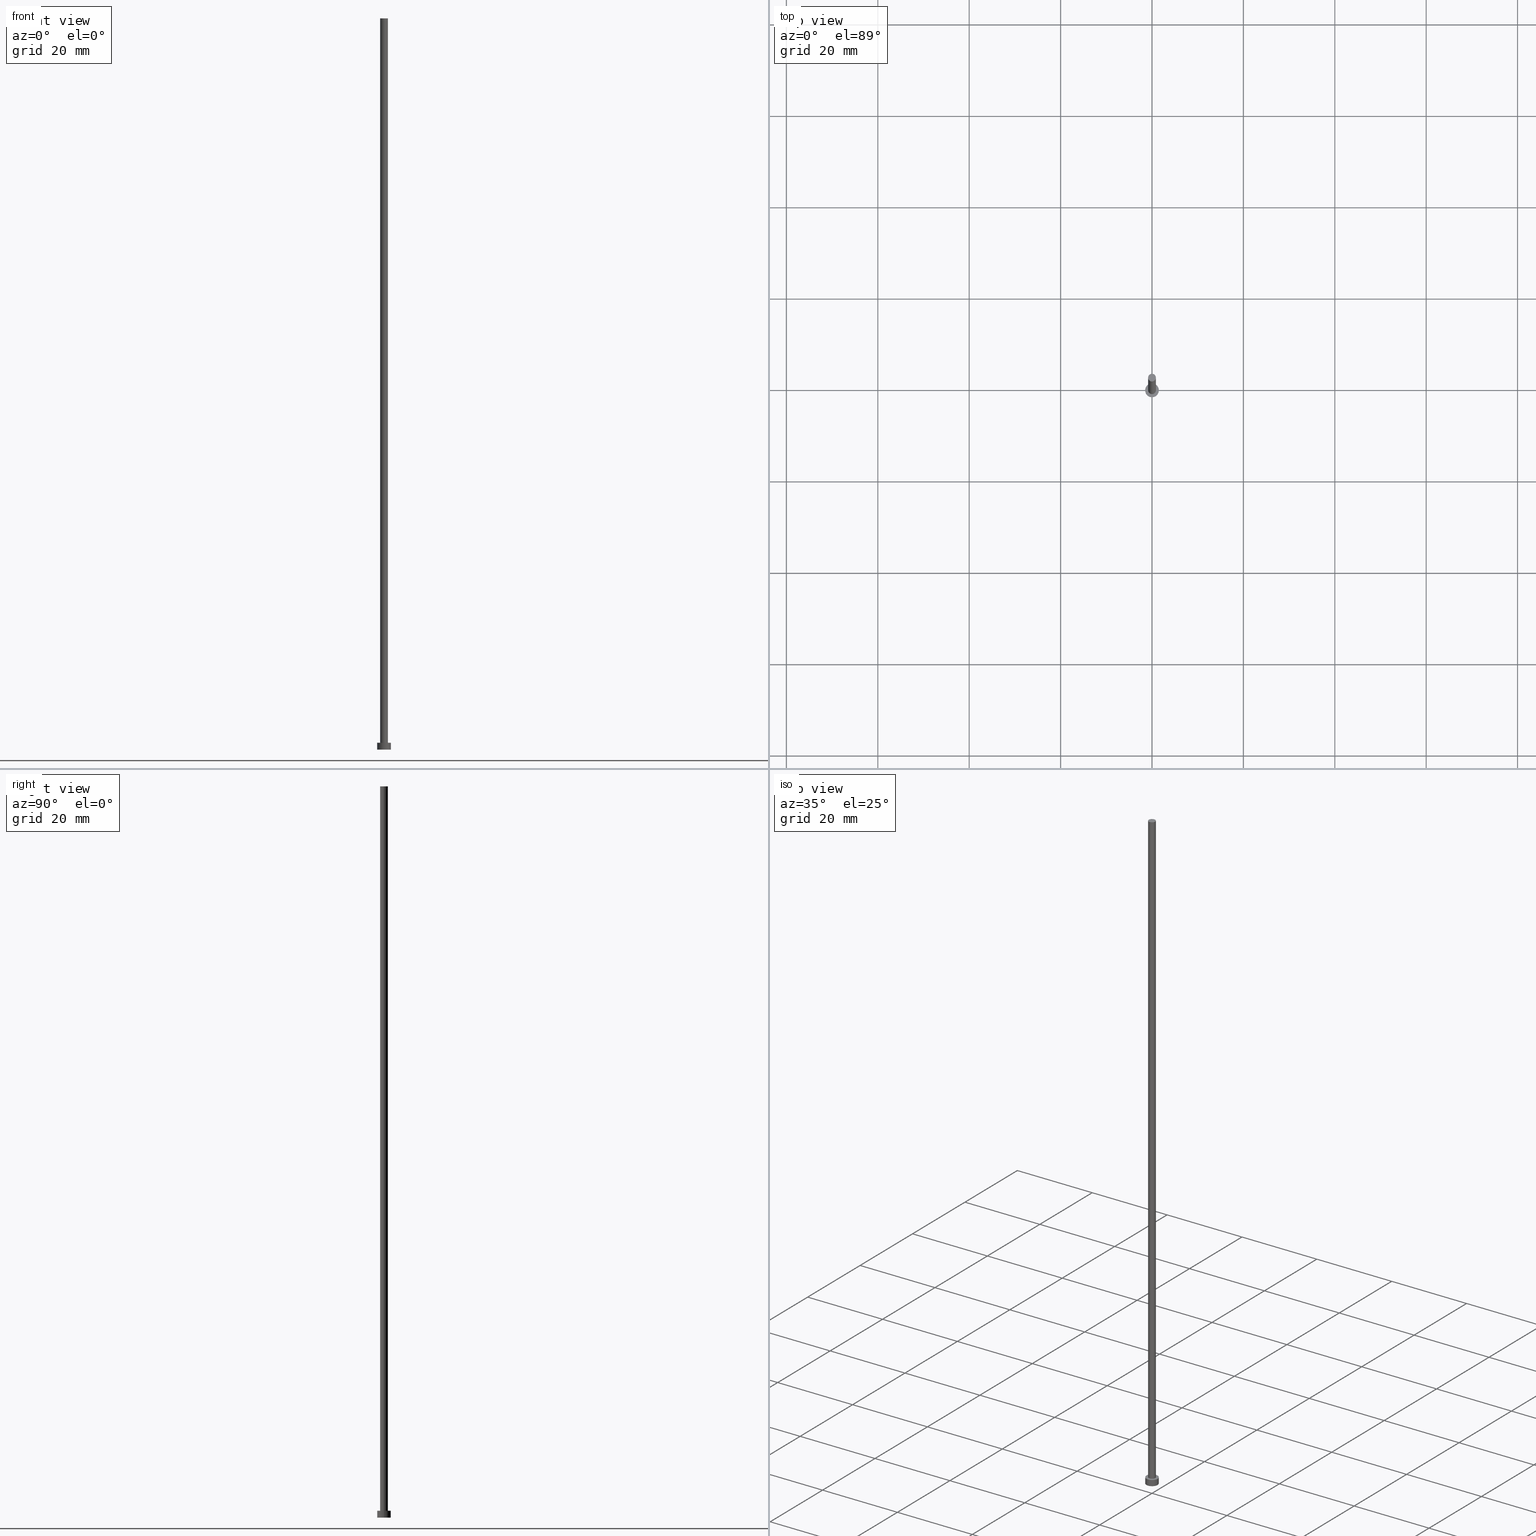
[diagram: canonical four-view strip — front | top / right | iso, engineering-drawing reading convention]
A machine part, canonical four-view strip (front | top / right | iso — engineering-drawing reading convention). The complete STEP part file that produces these views, byte-faithful:
ISO-10303-21;
HEADER;
FILE_DESCRIPTION (( 'STEP AP203' ),
    '1' );
FILE_NAME ('795b.STEP',
    '2023-02-13T14:57:43',
    ( '' ),
    ( '' ),
    'SwSTEP 2.0',
    'SolidWorks 2019',
    '' );
FILE_SCHEMA (( 'CONFIG_CONTROL_DESIGN' ));
ENDSEC;

DATA;
#1 = ORIENTED_EDGE ( 'NONE', *, *, #146, .F. ) ;
#2 = CC_DESIGN_APPROVAL ( #182, ( #253 ) ) ;
#3 = ORIENTED_EDGE ( 'NONE', *, *, #162, .F. ) ;
#4 = CARTESIAN_POINT ( 'NONE',  ( 0.8499999999999999778, 1.040949779275250140E-16, 160.0000000000000000 ) ) ;
#5 = LINE ( 'NONE', #79, #232 ) ;
#6 = CARTESIAN_POINT ( 'NONE',  ( 0.000000000000000000, 0.000000000000000000, 0.000000000000000000 ) ) ;
#7 = DIRECTION ( 'NONE',  ( 0.000000000000000000, 0.000000000000000000, 1.000000000000000000 ) ) ;
#8 = LOCAL_TIME ( 15, 57, 43.00000000000000000, #104 ) ;
#9 = DESIGN_CONTEXT ( 'detailed design', #115, 'design' ) ;
#10 = SECURITY_CLASSIFICATION_LEVEL ( 'unclassified' ) ;
#11 = DIRECTION ( 'NONE',  ( 1.000000000000000000, 0.000000000000000000, 0.000000000000000000 ) ) ;
#12 = PERSON_AND_ORGANIZATION ( #92, #57 ) ;
#13 = EDGE_CURVE ( 'NONE', #137, #52, #87, .T. ) ;
#14 = COORDINATED_UNIVERSAL_TIME_OFFSET ( 1, 0, .AHEAD. ) ;
#15 = VERTEX_POINT ( 'NONE', #95 ) ;
#16 = ORIENTED_EDGE ( 'NONE', *, *, #128, .F. ) ;
#17 = ORIENTED_EDGE ( 'NONE', *, *, #53, .F. ) ;
#18 = ORIENTED_EDGE ( 'NONE', *, *, #160, .F. ) ;
#19 = ORIENTED_EDGE ( 'NONE', *, *, #128, .T. ) ;
#20 = DIRECTION ( 'NONE',  ( 0.000000000000000000, 0.000000000000000000, 1.000000000000000000 ) ) ;
#21 = ADVANCED_FACE ( 'NONE', ( #75 ), #139, .T. ) ;
#22 = DIRECTION ( 'NONE',  ( 1.000000000000000000, 0.000000000000000000, -0.000000000000000000 ) ) ;
#23 = ADVANCED_BREP_SHAPE_REPRESENTATION ( '795b', ( #59, #196 ), #187 ) ;
#24 = DIRECTION ( 'NONE',  ( -1.000000000000000000, 0.000000000000000000, 0.000000000000000000 ) ) ;
#25 = FACE_OUTER_BOUND ( 'NONE', #216, .T. ) ;
#26 = AXIS2_PLACEMENT_3D ( 'NONE', #249, #251, #45 ) ;
#27 = APPROVAL_DATE_TIME ( #225, #182 ) ;
#28 = APPLICATION_PROTOCOL_DEFINITION ( 'international standard', 'config_control_design', 1994, #168 ) ;
#29 = APPROVAL_ROLE ( '' ) ;
#30 = CIRCLE ( 'NONE', #135, 1.500000000000000222 ) ;
#31 = VERTEX_POINT ( 'NONE', #118 ) ;
#32 = APPROVAL_PERSON_ORGANIZATION ( #131, #89, #29 ) ;
#33 = ORIENTED_EDGE ( 'NONE', *, *, #146, .T. ) ;
#34 = EDGE_LOOP ( 'NONE', ( #159, #134 ) ) ;
#35 = ORIENTED_EDGE ( 'NONE', *, *, #227, .F. ) ;
#36 = AXIS2_PLACEMENT_3D ( 'NONE', #183, #7, #81 ) ;
#37 = EDGE_CURVE ( 'NONE', #237, #31, #202, .T. ) ;
#38 = DIRECTION ( 'NONE',  ( -0.000000000000000000, -0.000000000000000000, -1.000000000000000000 ) ) ;
#39 = DIRECTION ( 'NONE',  ( 0.000000000000000000, 0.000000000000000000, 1.000000000000000000 ) ) ;
#40 = CARTESIAN_POINT ( 'NONE',  ( 0.000000000000000000, 0.000000000000000000, 0.000000000000000000 ) ) ;
#41 = CYLINDRICAL_SURFACE ( 'NONE', #213, 1.500000000000000222 ) ;
#42 = LOCAL_TIME ( 15, 57, 43.00000000000000000, #14 ) ;
#43 = UNCERTAINTY_MEASURE_WITH_UNIT (LENGTH_MEASURE( 1.000000000000000082E-05 ), #155, 'distance_accuracy_value', 'NONE');
#44 = DATE_AND_TIME ( #125, #8 ) ;
#45 = DIRECTION ( 'NONE',  ( 1.000000000000000000, 0.000000000000000000, 0.000000000000000000 ) ) ;
#46 = VECTOR ( 'NONE', #97, 1000.000000000000000 ) ;
#47 = DATE_AND_TIME ( #71, #42 ) ;
#48 = AXIS2_PLACEMENT_3D ( 'NONE', #63, #231, #67 ) ;
#49 = ORIENTED_EDGE ( 'NONE', *, *, #73, .F. ) ;
#50 = AXIS2_PLACEMENT_3D ( 'NONE', #158, #212, #116 ) ;
#51 = ORIENTED_EDGE ( 'NONE', *, *, #243, .F. ) ;
#52 = VERTEX_POINT ( 'NONE', #217 ) ;
#53 = EDGE_CURVE ( 'NONE', #90, #255, #60, .T. ) ;
#54 = ORIENTED_EDGE ( 'NONE', *, *, #162, .T. ) ;
#55 = DIRECTION ( 'NONE',  ( -0.000000000000000000, -0.000000000000000000, -1.000000000000000000 ) ) ;
#56 = LOCAL_TIME ( 15, 57, 43.00000000000000000, #88 ) ;
#57 = ORGANIZATION ( 'NEUR�EN�', 'NEUR�EN�', '' ) ;
#58 = PLANE ( 'NONE',  #107 ) ;
#59 = MANIFOLD_SOLID_BREP ( 'P�idat vysunut�m3', #220 ) ;
#60 = CIRCLE ( 'NONE', #176, 0.8499999999999999778 ) ;
#61 = PERSON_AND_ORGANIZATION ( #92, #57 ) ;
#62 = COORDINATED_UNIVERSAL_TIME_OFFSET ( 1, 0, .AHEAD. ) ;
#63 = CARTESIAN_POINT ( 'NONE',  ( 0.000000000000000000, 0.000000000000000000, 1.500000000000000000 ) ) ;
#64 = PERSON_AND_ORGANIZATION_ROLE ( 'creator' ) ;
#65 = CIRCLE ( 'NONE', #110, 1.500000000000000222 ) ;
#66 = CARTESIAN_POINT ( 'NONE',  ( 0.8499999999999999778, 1.040949779275250140E-16, 1.500000000000000000 ) ) ;
#67 = DIRECTION ( 'NONE',  ( -1.000000000000000000, 0.000000000000000000, 0.000000000000000000 ) ) ;
#68 = DATE_AND_TIME ( #233, #56 ) ;
#69 = DIRECTION ( 'NONE',  ( 0.000000000000000000, 0.000000000000000000, 1.000000000000000000 ) ) ;
#70 = APPROVAL_STATUS ( 'not_yet_approved' ) ;
#71 = CALENDAR_DATE ( 2023, 13, 2 ) ;
#72 = EDGE_LOOP ( 'NONE', ( #35, #114, #94, #1 ) ) ;
#73 = EDGE_CURVE ( 'NONE', #31, #237, #65, .T. ) ;
#74 = EDGE_LOOP ( 'NONE', ( #17, #214 ) ) ;
#75 = FACE_OUTER_BOUND ( 'NONE', #254, .T. ) ;
#76 = VERTEX_POINT ( 'NONE', #4 ) ;
#77 = CYLINDRICAL_SURFACE ( 'NONE', #247, 0.8499999999999999778 ) ;
#78 = CC_DESIGN_DATE_AND_TIME_ASSIGNMENT ( #68, #211, ( #230 ) ) ;
#79 = CARTESIAN_POINT ( 'NONE',  ( -1.500000000000000222, 0.000000000000000000, 1.500000000000000000 ) ) ;
#80 = CARTESIAN_POINT ( 'NONE',  ( -0.8499999999999999778, 0.000000000000000000, 160.0000000000000000 ) ) ;
#81 = DIRECTION ( 'NONE',  ( 1.000000000000000000, 0.000000000000000000, -0.000000000000000000 ) ) ;
#82 = DATE_AND_TIME ( #208, #83 ) ;
#83 = LOCAL_TIME ( 15, 57, 43.00000000000000000, #127 ) ;
#84 = APPROVAL_DATE_TIME ( #82, #154 ) ;
#85 =( NAMED_UNIT ( * ) PLANE_ANGLE_UNIT ( ) SI_UNIT ( $, .RADIAN. ) );
#86 = CC_DESIGN_PERSON_AND_ORGANIZATION_ASSIGNMENT ( #12, #172, ( #222 ) ) ;
#87 = CIRCLE ( 'NONE', #50, 1.500000000000000222 ) ;
#88 = COORDINATED_UNIVERSAL_TIME_OFFSET ( 1, 0, .AHEAD. ) ;
#89 = APPROVAL ( #210, 'NEUR�EN�' ) ;
#90 = VERTEX_POINT ( 'NONE', #218 ) ;
#91 = PERSON_AND_ORGANIZATION_ROLE ( 'creator' ) ;
#92 = PERSON ( 'NEUR�EN�', 'NEUR�EN�', 'NEUR�EN�', ('NEUR�EN�'), ('NEUR�EN�'), ('NEUR�EN�') ) ;
#93 = DIRECTION ( 'NONE',  ( -1.000000000000000000, 0.000000000000000000, 0.000000000000000000 ) ) ;
#94 = ORIENTED_EDGE ( 'NONE', *, *, #252, .T. ) ;
#95 = CARTESIAN_POINT ( 'NONE',  ( -0.8499999999999999778, 0.000000000000000000, 160.0000000000000000 ) ) ;
#96 = PRODUCT_RELATED_PRODUCT_CATEGORY ( 'detail', '', ( #222 ) ) ;
#97 = DIRECTION ( 'NONE',  ( -0.000000000000000000, -0.000000000000000000, -1.000000000000000000 ) ) ;
#98 = LINE ( 'NONE', #80, #121 ) ;
#99 = FACE_OUTER_BOUND ( 'NONE', #174, .T. ) ;
#100 = VECTOR ( 'NONE', #55, 1000.000000000000000 ) ;
#101 = DIRECTION ( 'NONE',  ( 0.000000000000000000, 0.000000000000000000, 1.000000000000000000 ) ) ;
#102 = LOCAL_TIME ( 15, 57, 43.00000000000000000, #62 ) ;
#103 = PLANE ( 'NONE',  #157 ) ;
#104 = COORDINATED_UNIVERSAL_TIME_OFFSET ( 1, 0, .AHEAD. ) ;
#105 = CIRCLE ( 'NONE', #250, 0.8499999999999999778 ) ;
#106 = DIRECTION ( 'NONE',  ( -1.000000000000000000, 0.000000000000000000, 0.000000000000000000 ) ) ;
#107 = AXIS2_PLACEMENT_3D ( 'NONE', #203, #224, #126 ) ;
#108 = DIRECTION ( 'NONE',  ( 1.000000000000000000, 0.000000000000000000, 0.000000000000000000 ) ) ;
#109 = PERSON_AND_ORGANIZATION ( #92, #57 ) ;
#110 = AXIS2_PLACEMENT_3D ( 'NONE', #40, #20, #242 ) ;
#111 = ORIENTED_EDGE ( 'NONE', *, *, #37, .T. ) ;
#112 = AXIS2_PLACEMENT_3D ( 'NONE', #150, #170, #11 ) ;
#113 = CC_DESIGN_PERSON_AND_ORGANIZATION_ASSIGNMENT ( #171, #64, ( #253 ) ) ;
#114 = ORIENTED_EDGE ( 'NONE', *, *, #160, .T. ) ;
#115 = APPLICATION_CONTEXT ( 'configuration controlled 3d designs of mechanical parts and assemblies' ) ;
#116 = DIRECTION ( 'NONE',  ( 1.000000000000000000, 0.000000000000000000, 0.000000000000000000 ) ) ;
#117 = CARTESIAN_POINT ( 'NONE',  ( 0.000000000000000000, 0.000000000000000000, 160.0000000000000000 ) ) ;
#118 = CARTESIAN_POINT ( 'NONE',  ( 1.500000000000000222, 1.836970198721030181E-16, 0.000000000000000000 ) ) ;
#119 = DIRECTION ( 'NONE',  ( 1.000000000000000000, 0.000000000000000000, 0.000000000000000000 ) ) ;
#120 = LINE ( 'NONE', #205, #46 ) ;
#121 = VECTOR ( 'NONE', #201, 1000.000000000000000 ) ;
#122 = LINE ( 'NONE', #240, #100 ) ;
#123 = ADVANCED_FACE ( 'NONE', ( #144 ), #77, .T. ) ;
#124 = AXIS2_PLACEMENT_3D ( 'NONE', #117, #194, #93 ) ;
#125 = CALENDAR_DATE ( 2023, 13, 2 ) ;
#126 = DIRECTION ( 'NONE',  ( 1.000000000000000000, 0.000000000000000000, -0.000000000000000000 ) ) ;
#127 = COORDINATED_UNIVERSAL_TIME_OFFSET ( 1, 0, .AHEAD. ) ;
#128 = EDGE_CURVE ( 'NONE', #137, #31, #122, .T. ) ;
#129 = APPROVAL_PERSON_ORGANIZATION ( #173, #182, #167 ) ;
#130 = CARTESIAN_POINT ( 'NONE',  ( -1.500000000000000222, 0.000000000000000000, 0.000000000000000000 ) ) ;
#131 = PERSON_AND_ORGANIZATION ( #92, #57 ) ;
#132 = FACE_OUTER_BOUND ( 'NONE', #195, .T. ) ;
#133 = EDGE_CURVE ( 'NONE', #52, #137, #30, .T. ) ;
#134 = ORIENTED_EDGE ( 'NONE', *, *, #13, .T. ) ;
#135 = AXIS2_PLACEMENT_3D ( 'NONE', #143, #39, #119 ) ;
#136 = AXIS2_PLACEMENT_3D ( 'NONE', #6, #101, #141 ) ;
#137 = VERTEX_POINT ( 'NONE', #198 ) ;
#138 = ORIENTED_EDGE ( 'NONE', *, *, #37, .F. ) ;
#139 = CYLINDRICAL_SURFACE ( 'NONE', #124, 0.8499999999999999778 ) ;
#140 = CIRCLE ( 'NONE', #26, 0.8499999999999999778 ) ;
#141 = DIRECTION ( 'NONE',  ( 1.000000000000000000, 0.000000000000000000, 0.000000000000000000 ) ) ;
#142 = CC_DESIGN_APPROVAL ( #154, ( #206 ) ) ;
#143 = CARTESIAN_POINT ( 'NONE',  ( 0.000000000000000000, 0.000000000000000000, 1.500000000000000000 ) ) ;
#144 = FACE_OUTER_BOUND ( 'NONE', #72, .T. ) ;
#145 = PRODUCT_DEFINITION_SHAPE ( 'NONE', 'NONE',  #230 ) ;
#146 = EDGE_CURVE ( 'NONE', #15, #90, #98, .T. ) ;
#147 = APPROVAL_STATUS ( 'not_yet_approved' ) ;
#148 = DATE_TIME_ROLE ( 'classification_date' ) ;
#149 = CC_DESIGN_PERSON_AND_ORGANIZATION_ASSIGNMENT ( #109, #190, ( #206 ) ) ;
#150 = CARTESIAN_POINT ( 'NONE',  ( 0.000000000000000000, 0.000000000000000000, 1.500000000000000000 ) ) ;
#151 =( NAMED_UNIT ( * ) SI_UNIT ( $, .STERADIAN. ) SOLID_ANGLE_UNIT ( ) );
#152 = DIRECTION ( 'NONE',  ( 0.000000000000000000, 0.000000000000000000, 1.000000000000000000 ) ) ;
#153 = APPROVAL_DATE_TIME ( #47, #89 ) ;
#154 = APPROVAL ( #147, 'NEUR�EN�' ) ;
#155 =( LENGTH_UNIT ( ) NAMED_UNIT ( * ) SI_UNIT ( .MILLI., .METRE. ) );
#156 = ADVANCED_FACE ( 'NONE', ( #219, #163 ), #58, .T. ) ;
#157 = AXIS2_PLACEMENT_3D ( 'NONE', #184, #241, #22 ) ;
#158 = CARTESIAN_POINT ( 'NONE',  ( 0.000000000000000000, 0.000000000000000000, 1.500000000000000000 ) ) ;
#159 = ORIENTED_EDGE ( 'NONE', *, *, #133, .T. ) ;
#160 = EDGE_CURVE ( 'NONE', #76, #255, #120, .T. ) ;
#161 = CARTESIAN_POINT ( 'NONE',  ( 0.000000000000000000, 0.000000000000000000, 160.0000000000000000 ) ) ;
#162 = EDGE_CURVE ( 'NONE', #52, #237, #5, .T. ) ;
#163 = FACE_OUTER_BOUND ( 'NONE', #34, .T. ) ;
#164 = PLANE ( 'NONE',  #36 ) ;
#165 = SHAPE_DEFINITION_REPRESENTATION ( #145, #23 ) ;
#166 = CC_DESIGN_PERSON_AND_ORGANIZATION_ASSIGNMENT ( #193, #91, ( #230 ) ) ;
#167 = APPROVAL_ROLE ( '' ) ;
#168 = APPLICATION_CONTEXT ( 'configuration controlled 3d designs of mechanical parts and assemblies' ) ;
#169 = APPROVAL_PERSON_ORGANIZATION ( #186, #154, #226 ) ;
#170 = DIRECTION ( 'NONE',  ( 0.000000000000000000, 0.000000000000000000, 1.000000000000000000 ) ) ;
#171 = PERSON_AND_ORGANIZATION ( #92, #57 ) ;
#172 = PERSON_AND_ORGANIZATION_ROLE ( 'design_owner' ) ;
#173 = PERSON_AND_ORGANIZATION ( #92, #57 ) ;
#174 = EDGE_LOOP ( 'NONE', ( #138, #49 ) ) ;
#175 = ORIENTED_EDGE ( 'NONE', *, *, #53, .T. ) ;
#176 = AXIS2_PLACEMENT_3D ( 'NONE', #180, #197, #181 ) ;
#177 = ORIENTED_EDGE ( 'NONE', *, *, #227, .T. ) ;
#178 = ORIENTED_EDGE ( 'NONE', *, *, #133, .F. ) ;
#179 = ADVANCED_FACE ( 'NONE', ( #25 ), #103, .T. ) ;
#180 = CARTESIAN_POINT ( 'NONE',  ( 0.000000000000000000, 0.000000000000000000, 1.500000000000000000 ) ) ;
#181 = DIRECTION ( 'NONE',  ( 1.000000000000000000, 0.000000000000000000, 0.000000000000000000 ) ) ;
#182 = APPROVAL ( #70, 'NEUR�EN�' ) ;
#183 = CARTESIAN_POINT ( 'NONE',  ( 0.000000000000000000, 0.000000000000000000, 0.000000000000000000 ) ) ;
#184 = CARTESIAN_POINT ( 'NONE',  ( 0.000000000000000000, 0.000000000000000000, 160.0000000000000000 ) ) ;
#185 = CARTESIAN_POINT ( 'NONE',  ( 0.000000000000000000, 0.000000000000000000, 1.500000000000000000 ) ) ;
#186 = PERSON_AND_ORGANIZATION ( #92, #57 ) ;
#187 =( GEOMETRIC_REPRESENTATION_CONTEXT ( 3 ) GLOBAL_UNCERTAINTY_ASSIGNED_CONTEXT ( ( #43 ) ) GLOBAL_UNIT_ASSIGNED_CONTEXT ( ( #155, #85, #151 ) ) REPRESENTATION_CONTEXT ( 'NONE', 'WORKASPACE' ) );
#188 = CARTESIAN_POINT ( 'NONE',  ( 0.000000000000000000, 0.000000000000000000, 160.0000000000000000 ) ) ;
#189 = MECHANICAL_CONTEXT ( 'NONE', #168, 'mechanical' ) ;
#190 = PERSON_AND_ORGANIZATION_ROLE ( 'classification_officer' ) ;
#191 = DIRECTION ( 'NONE',  ( -0.000000000000000000, -0.000000000000000000, -1.000000000000000000 ) ) ;
#192 = EDGE_LOOP ( 'NONE', ( #16, #178, #54, #111 ) ) ;
#193 = PERSON_AND_ORGANIZATION ( #92, #57 ) ;
#194 = DIRECTION ( 'NONE',  ( -0.000000000000000000, -0.000000000000000000, -1.000000000000000000 ) ) ;
#195 = EDGE_LOOP ( 'NONE', ( #215, #19, #239, #3 ) ) ;
#196 = AXIS2_PLACEMENT_3D ( 'NONE', #228, #69, #209 ) ;
#197 = DIRECTION ( 'NONE',  ( 0.000000000000000000, 0.000000000000000000, 1.000000000000000000 ) ) ;
#198 = CARTESIAN_POINT ( 'NONE',  ( 1.500000000000000222, 1.836970198721030181E-16, 1.500000000000000000 ) ) ;
#199 = ADVANCED_FACE ( 'NONE', ( #99 ), #164, .F. ) ;
#200 = DIRECTION ( 'NONE',  ( -0.000000000000000000, -0.000000000000000000, -1.000000000000000000 ) ) ;
#201 = DIRECTION ( 'NONE',  ( -0.000000000000000000, -0.000000000000000000, -1.000000000000000000 ) ) ;
#202 = CIRCLE ( 'NONE', #136, 1.500000000000000222 ) ;
#203 = CARTESIAN_POINT ( 'NONE',  ( 0.000000000000000000, 0.000000000000000000, 1.500000000000000000 ) ) ;
#204 = ADVANCED_FACE ( 'NONE', ( #221 ), #41, .T. ) ;
#205 = CARTESIAN_POINT ( 'NONE',  ( 0.8499999999999999778, 1.040949779275250140E-16, 160.0000000000000000 ) ) ;
#206 = SECURITY_CLASSIFICATION ( '', '', #10 ) ;
#207 = CC_DESIGN_SECURITY_CLASSIFICATION ( #206, ( #253 ) ) ;
#208 = CALENDAR_DATE ( 2023, 13, 2 ) ;
#209 = DIRECTION ( 'NONE',  ( 1.000000000000000000, 0.000000000000000000, 0.000000000000000000 ) ) ;
#210 = APPROVAL_STATUS ( 'not_yet_approved' ) ;
#211 = DATE_TIME_ROLE ( 'creation_date' ) ;
#212 = DIRECTION ( 'NONE',  ( 0.000000000000000000, 0.000000000000000000, 1.000000000000000000 ) ) ;
#213 = AXIS2_PLACEMENT_3D ( 'NONE', #185, #191, #106 ) ;
#214 = ORIENTED_EDGE ( 'NONE', *, *, #252, .F. ) ;
#215 = ORIENTED_EDGE ( 'NONE', *, *, #13, .F. ) ;
#216 = EDGE_LOOP ( 'NONE', ( #238, #177 ) ) ;
#217 = CARTESIAN_POINT ( 'NONE',  ( -1.500000000000000222, 0.000000000000000000, 1.500000000000000000 ) ) ;
#218 = CARTESIAN_POINT ( 'NONE',  ( -0.8499999999999999778, 0.000000000000000000, 1.500000000000000000 ) ) ;
#219 = FACE_BOUND ( 'NONE', #74, .T. ) ;
#220 = CLOSED_SHELL ( 'NONE', ( #123, #246, #204, #156, #199, #21, #179 ) ) ;
#221 = FACE_OUTER_BOUND ( 'NONE', #192, .T. ) ;
#222 = PRODUCT ( '795b', '795b', '', ( #189 ) ) ;
#223 = CC_DESIGN_APPROVAL ( #89, ( #230 ) ) ;
#224 = DIRECTION ( 'NONE',  ( 0.000000000000000000, 0.000000000000000000, 1.000000000000000000 ) ) ;
#225 = DATE_AND_TIME ( #245, #102 ) ;
#226 = APPROVAL_ROLE ( '' ) ;
#227 = EDGE_CURVE ( 'NONE', #76, #15, #105, .T. ) ;
#228 = CARTESIAN_POINT ( 'NONE',  ( 0.000000000000000000, 0.000000000000000000, 0.000000000000000000 ) ) ;
#229 = PERSON_AND_ORGANIZATION_ROLE ( 'design_supplier' ) ;
#230 = PRODUCT_DEFINITION ( 'NEZN�M�', '', #253, #9 ) ;
#231 = DIRECTION ( 'NONE',  ( -0.000000000000000000, -0.000000000000000000, -1.000000000000000000 ) ) ;
#232 = VECTOR ( 'NONE', #200, 1000.000000000000000 ) ;
#233 = CALENDAR_DATE ( 2023, 13, 2 ) ;
#234 = CC_DESIGN_PERSON_AND_ORGANIZATION_ASSIGNMENT ( #61, #229, ( #253 ) ) ;
#235 = APPLICATION_PROTOCOL_DEFINITION ( 'international standard', 'config_control_design', 1994, #115 ) ;
#236 = CYLINDRICAL_SURFACE ( 'NONE', #48, 1.500000000000000222 ) ;
#237 = VERTEX_POINT ( 'NONE', #130 ) ;
#238 = ORIENTED_EDGE ( 'NONE', *, *, #243, .T. ) ;
#239 = ORIENTED_EDGE ( 'NONE', *, *, #73, .T. ) ;
#240 = CARTESIAN_POINT ( 'NONE',  ( 1.500000000000000222, 1.836970198721030181E-16, 1.500000000000000000 ) ) ;
#241 = DIRECTION ( 'NONE',  ( 0.000000000000000000, 0.000000000000000000, 1.000000000000000000 ) ) ;
#242 = DIRECTION ( 'NONE',  ( 1.000000000000000000, 0.000000000000000000, 0.000000000000000000 ) ) ;
#243 = EDGE_CURVE ( 'NONE', #15, #76, #140, .T. ) ;
#244 = CC_DESIGN_DATE_AND_TIME_ASSIGNMENT ( #44, #148, ( #206 ) ) ;
#245 = CALENDAR_DATE ( 2023, 13, 2 ) ;
#246 = ADVANCED_FACE ( 'NONE', ( #132 ), #236, .T. ) ;
#247 = AXIS2_PLACEMENT_3D ( 'NONE', #161, #38, #24 ) ;
#248 = CIRCLE ( 'NONE', #112, 0.8499999999999999778 ) ;
#249 = CARTESIAN_POINT ( 'NONE',  ( 0.000000000000000000, 0.000000000000000000, 160.0000000000000000 ) ) ;
#250 = AXIS2_PLACEMENT_3D ( 'NONE', #188, #152, #108 ) ;
#251 = DIRECTION ( 'NONE',  ( 0.000000000000000000, 0.000000000000000000, 1.000000000000000000 ) ) ;
#252 = EDGE_CURVE ( 'NONE', #255, #90, #248, .T. ) ;
#253 = PRODUCT_DEFINITION_FORMATION_WITH_SPECIFIED_SOURCE ( 'LIBOVOLN�', '', #222, .NOT_KNOWN. ) ;
#254 = EDGE_LOOP ( 'NONE', ( #18, #51, #33, #175 ) ) ;
#255 = VERTEX_POINT ( 'NONE', #66 ) ;
ENDSEC;
END-ISO-10303-21;
